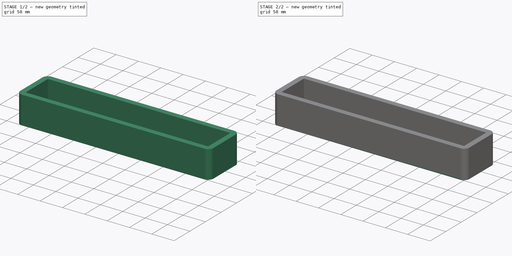
[diagram: build sequence overview — one tinted view per stage of 2, left to right]
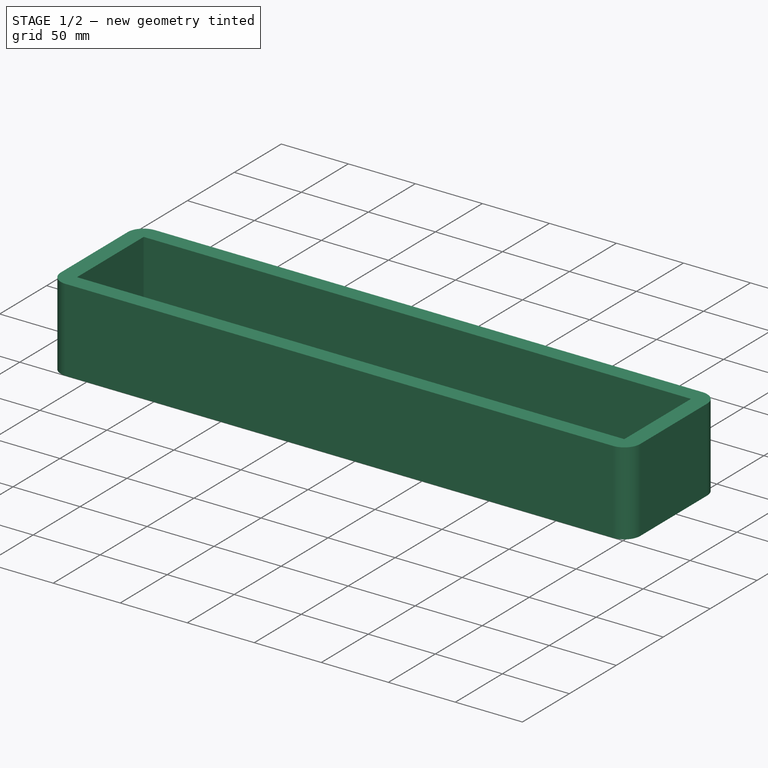
[diagram: stage 1 of 2 — iso view after this stage's code; geometry added in this stage tinted green]
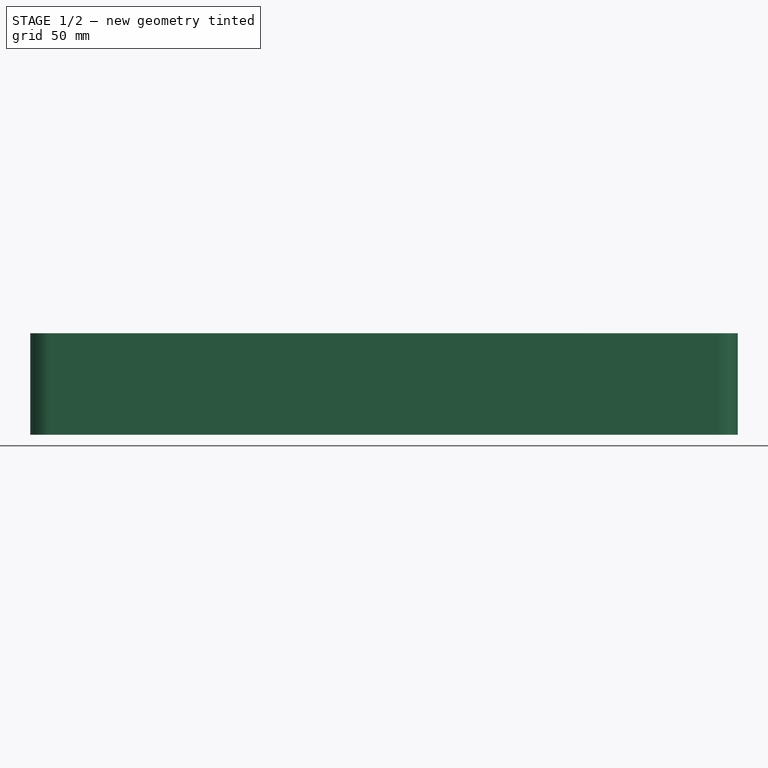
[diagram: stage 1 of 2 — front view after this stage's code; geometry added in this stage tinted green]
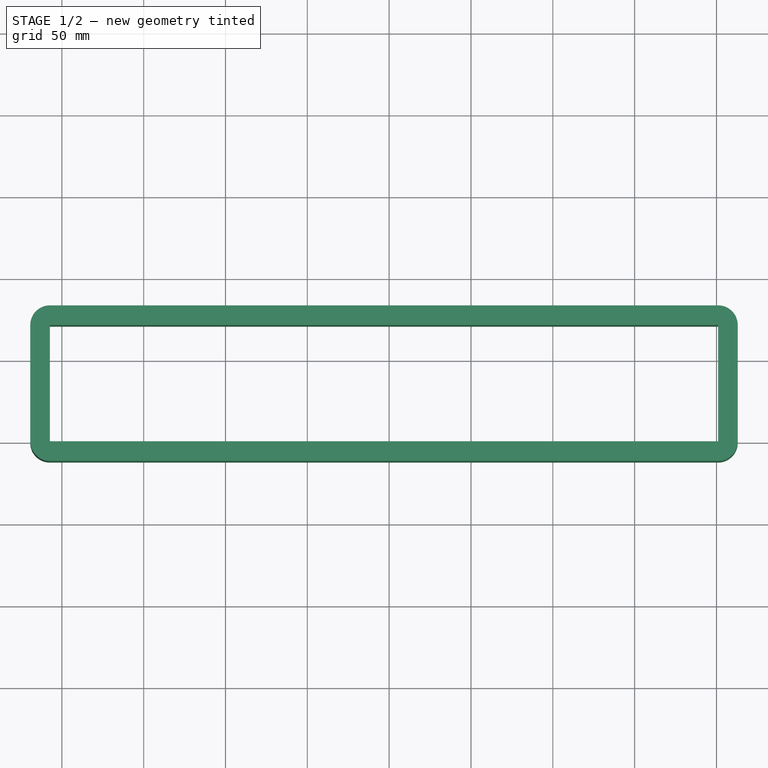
[diagram: stage 1 of 2 — top view after this stage's code; geometry added in this stage tinted green]
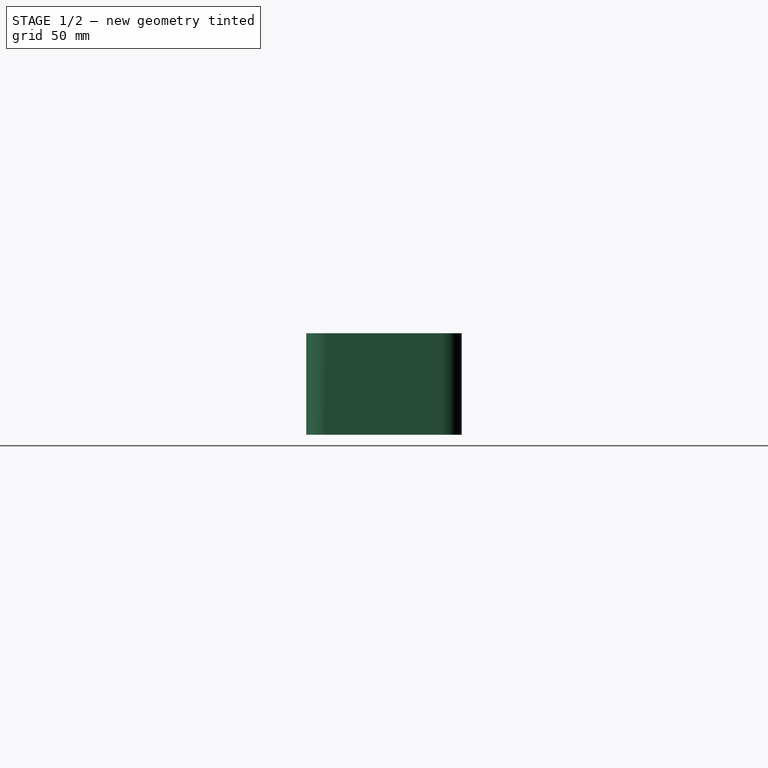
[diagram: stage 1 of 2 — right view after this stage's code; geometry added in this stage tinted green]
FCSTD DOCUMENT  (FreeCAD 0.21R33694 (Git))
Label: assembly
License: All rights reserved
LicenseURL: https://en.wikipedia.org/wiki/All_rights_reserved
objects: App::Part×5, App::VRMLObject×4, Part::FeaturePython×2, Sketcher::SketchObject×2, PartDesign::Pad×2, PartDesign::Body×1
note: 7 computed .brp shape members not serialized (recipe doc carries the construction recipe); baked Part::Feature solids carry a one-line shape summary decoded from their .brp

FEATURE [App::VRMLObject] ControlBoard
FEATURE [App::Part] Part001
  Group = -> [ControlBoard]
  Origin = -> Origin001
  Placement = pos=(0,0,7.5) rot=(0,0,1;0rad)
FEATURE [App::VRMLObject] DriverBoard
FEATURE [App::VRMLObject] FrontPanel
FEATURE [Part::FeaturePython] Array  # Draft array (typed FeaturePython)
  AlwaysSyncPlacement = false
  Angle = 360
  ArrayType = 0
  Axis = (0,0,1)
  Base = -> FrontPanel
  Center = (0,0,0)
  Count = 8
  ExpandArray = false
  Fuse = false
  IntervalAxis = (0,0,0)
  IntervalX = (-51.05,0,0)
  IntervalY = (0,0,0)
  IntervalZ = (0,0,100)
  NumberCircles = 3
  NumberPolar = 5
  NumberX = 8
  NumberY = 1
  NumberZ = 1
  PlacementList = 8 placements: arithmetic series from (0,0,0) step (-51.05,0,0) to (-357.35,0,0)
  RadialDistance = 50
  ScaleList = (8) [(1,1,1),(1,1,1),(1,1,1),(1,1,1),(1,1,1),(1,1,1),(1,1,1),(1,1,1)]
  Symmetry = 1
  TangentialDistance = 25
FEATURE [App::Part] Part003
  Group = -> [FrontPanel,Array]
  Origin = -> Origin003
  Placement = pos=(0,0,32.7) rot=(0,0,1;0rad)
FEATURE [Part::FeaturePython] Array001  # Draft array (typed FeaturePython)
  AlwaysSyncPlacement = false
  Angle = 360
  ArrayType = 0
  Axis = (0,0,1)
  Base = -> DriverBoard
  Center = (0,0,0)
  Count = 8
  ExpandArray = false
  Fuse = false
  IntervalAxis = (0,0,0)
  IntervalX = (-51.05,0,0)
  IntervalY = (0,100,0)
  IntervalZ = (0,0,100)
  NumberCircles = 3
  NumberPolar = 5
  NumberX = 8
  NumberY = 1
  NumberZ = 1
  PlacementList = 8 placements: arithmetic series from (0,0,0) step (-51.05,0,0) to (-357.35,0,0)
  RadialDistance = 50
  ScaleList = (8) [(1,1,1),(1,1,1),(1,1,1),(1,1,1),(1,1,1),(1,1,1),(1,1,1),(1,1,1)]
  Symmetry = 1
  TangentialDistance = 25
FEATURE [App::Part] Part002
  Group = -> [DriverBoard,Array001]
  Origin = -> Origin002
  Placement = pos=(0,0,7.5) rot=(0,0,1;0rad)
FEATURE [Sketcher::SketchObject] Sketch
  FullyConstrained = true
  MapMode = 5
  Support = -> [XY_Plane005]
  sketch-geometry (14):
    g0: LineSegment StartX=-357.29 StartY=71.05 StartZ=0 EndX=50.99 EndY=71.05 EndZ=0
    g1: LineSegment StartX=50.99 StartY=71.05 StartZ=0 EndX=50.99 EndY=0 EndZ=0
    g2: LineSegment StartX=50.99 StartY=0 StartZ=0 EndX=-357.29 EndY=0 EndZ=0
    g3: LineSegment StartX=-357.29 StartY=0 StartZ=0 EndX=-357.29 EndY=71.05 EndZ=0
    g4: ArcOfCircle CenterX=50.99 CenterY=71.05 CenterZ=0 NormalX=0 NormalY=0 NormalZ=1 AngleXU=0 Radius=12 StartAngle=5e-16 EndAngle=1.5708
    g5: LineSegment StartX=62.99 StartY=71.05 StartZ=0 EndX=62.99 EndY=0 EndZ=0
    g6: ArcOfCircle CenterX=50.99 CenterY=0 CenterZ=0 NormalX=0 NormalY=0 NormalZ=1 AngleXU=0 Radius=12 StartAngle=4.71239 EndAngle=6.28319
    g7: LineSegment StartX=50.99 StartY=-12 StartZ=0 EndX=-357.29 EndY=-12 EndZ=0
    g8: ArcOfCircle CenterX=-357.29 CenterY=0 CenterZ=0 NormalX=0 NormalY=0 NormalZ=1 AngleXU=0 Radius=12 StartAngle=3.14159 EndAngle=4.71239
    g9: LineSegment StartX=-369.29 StartY=-3.9e-15 StartZ=0 EndX=-369.29 EndY=71.05 EndZ=0
    g10: ArcOfCircle CenterX=-357.29 CenterY=71.05 CenterZ=0 NormalX=0 NormalY=0 NormalZ=1 AngleXU=0 Radius=12 StartAngle=1.5708 EndAngle=3.14159
    g11: LineSegment StartX=-357.29 StartY=83.05 StartZ=0 EndX=50.99 EndY=83.05 EndZ=0
    g12: GeomPoint X=62.99 Y=83.05 Z=0
    g13: GeomPoint X=-369.29 Y=-12 Z=0
  constraints (34):
    c: Coincident(g0,g1)
    c: Coincident(g1,g2)
    c: Coincident(g2,g3)
    c: Coincident(g3,g0)
    c: Horizontal(g0)
    c: Horizontal(g2)
    c: Vertical(g1)
    c: Vertical(g3)
    c: PointOnObject(g1,g-1)
    c: Distance(g1,g-2) = 50.99
    c: Distance(g0,g-2) = 357.29
    c: Distance(g1) = 71.05
    c: Tangent(g4,g5) = 1.5708
    c: Tangent(g5,g6) = 1.5708
    c: Tangent(g6,g7) = 1.5708
    c: Tangent(g7,g8) = 1.5708
    c: Tangent(g8,g9) = 1.5708
    c: Tangent(g9,g10) = 1.5708
    c: Tangent(g10,g11) = 1.5708
    c: Tangent(g11,g4) = 1.5708
    c: Horizontal(g7)
    c: Horizontal(g11)
    c: Vertical(g5)
    c: Vertical(g9)
    c: Equal(g4,g6)
    c: Equal(g6,g8)
    c: Equal(g8,g10)
    c: PointOnObject(g12,g5)
    c: PointOnObject(g12,g11)
    c: PointOnObject(g13,g7)
    c: PointOnObject(g13,g9)
    c: Distance(g4,g1) = 12
    c: Coincident(g4,g0)
    c: Coincident(g2,g8)
FEATURE [PartDesign::Pad] Pad
  Direction = (0,0,1)
  Length = 62
  Length2 = 10
  Profile = -> Sketch
  ReferenceAxis = -> Sketch [N_Axis]
  Type = 0
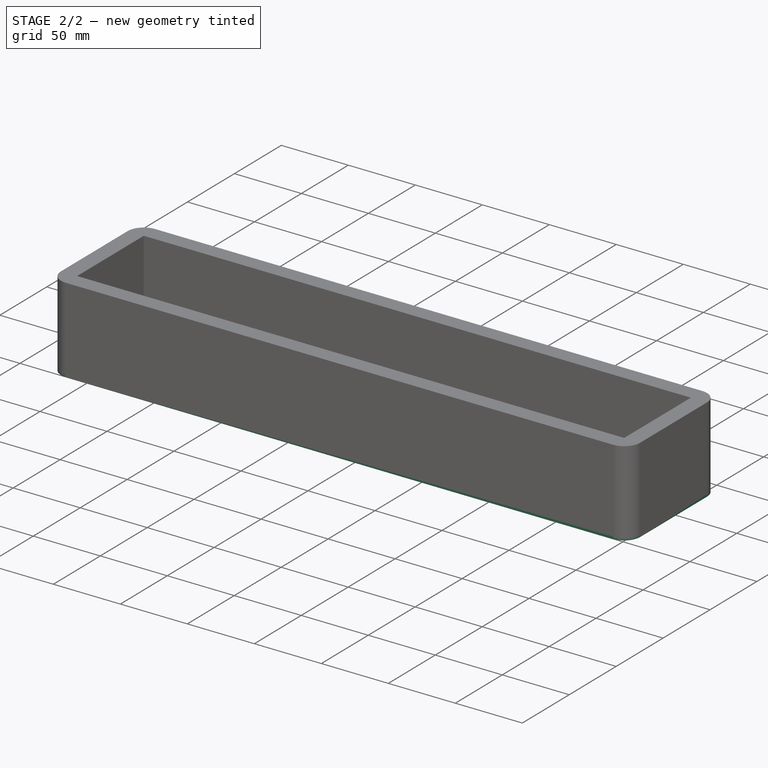
[diagram: stage 2 of 2 — iso view after this stage's code; geometry added in this stage tinted green]
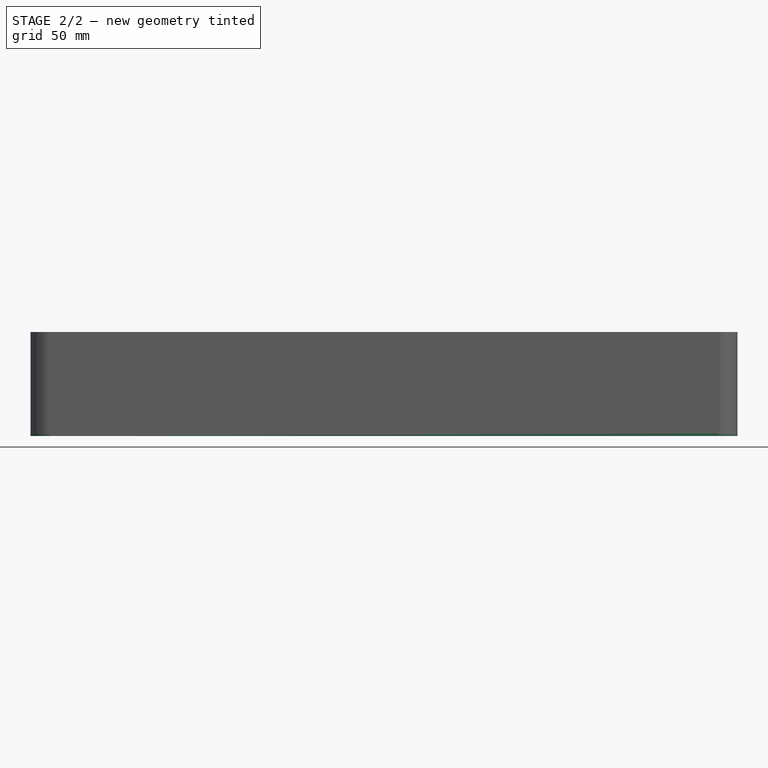
[diagram: stage 2 of 2 — front view after this stage's code; geometry added in this stage tinted green]
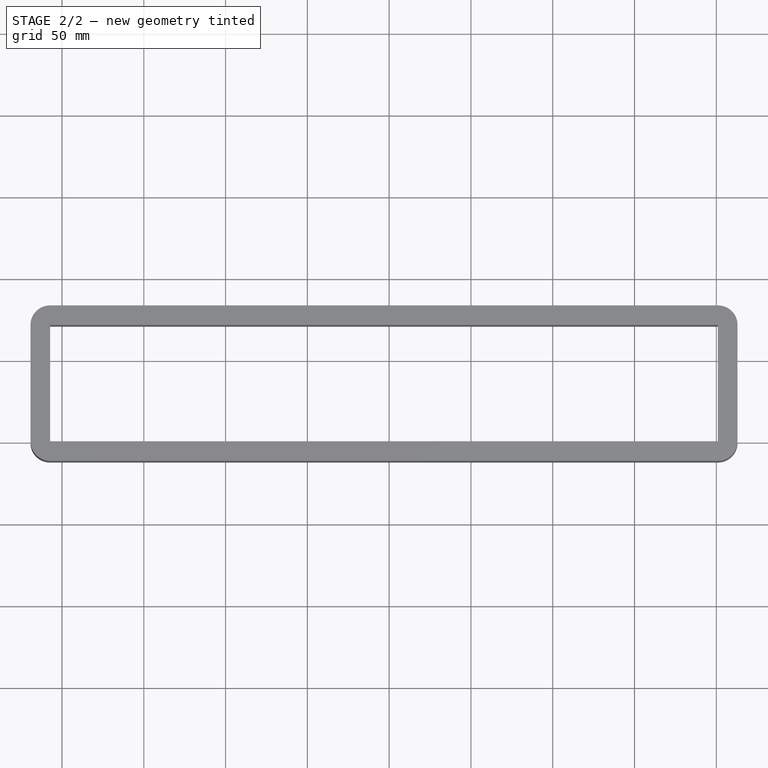
[diagram: stage 2 of 2 — top view after this stage's code; geometry added in this stage tinted green]
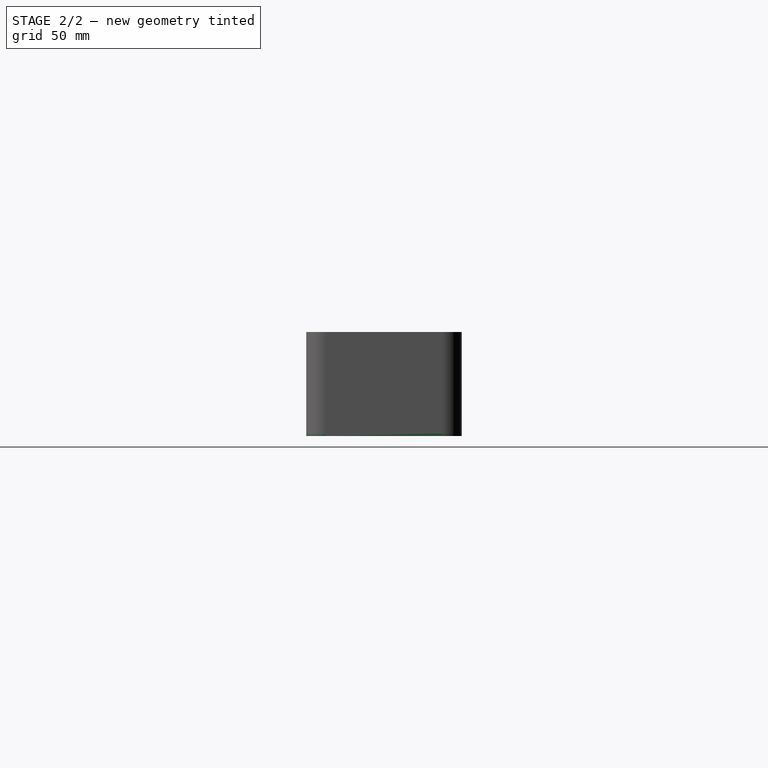
[diagram: stage 2 of 2 — right view after this stage's code; geometry added in this stage tinted green]
FEATURE [Sketcher::SketchObject] Sketch001
  ExternalGeometry = -> [Pad]
  FullyConstrained = true
  MapMode = 5
  Placement = pos=(0,0,0) rot=(1,0,0;3.14159rad)
  Support = -> [Pad]
  sketch-geometry (24):
    g0: LineSegment StartX=-369.29 StartY=-71.05 StartZ=0 EndX=-369.29 EndY=-83.05 EndZ=0
    g1: LineSegment StartX=-357.29 StartY=-83.05 StartZ=0 EndX=-369.29 EndY=-83.05 EndZ=0
    g2: LineSegment StartX=50.99 StartY=12 StartZ=0 EndX=62.99 EndY=12 EndZ=0
    g3: LineSegment StartX=62.99 StartY=0 StartZ=0 EndX=62.99 EndY=12 EndZ=0
    g4: ArcOfCircle CenterX=50.99 CenterY=-4.9e-14 CenterZ=0 NormalX=0 NormalY=0 NormalZ=1 AngleXU=0 Radius=12 StartAngle=3.56e-14 EndAngle=1.5708
    g5: LineSegment StartX=62.99 StartY=3.777e-13 StartZ=0 EndX=62.99 EndY=-71.05 EndZ=0
    g6: ArcOfCircle CenterX=50.99 CenterY=-71.05 CenterZ=0 NormalX=0 NormalY=0 NormalZ=1 AngleXU=0 Radius=12 StartAngle=4.71239 EndAngle=6.28319
    g7: LineSegment StartX=50.99 StartY=-83.05 StartZ=0 EndX=-357.29 EndY=-83.05 EndZ=0
    g8: ArcOfCircle CenterX=-357.29 CenterY=-71.05 CenterZ=0 NormalX=0 NormalY=0 NormalZ=1 AngleXU=0 Radius=12 StartAngle=3.14159 EndAngle=4.71239
    g9: LineSegment StartX=-369.29 StartY=-71.05 StartZ=0 EndX=-369.29 EndY=3.837e-13 EndZ=0
    g10: ArcOfCircle CenterX=-357.29 CenterY=-4.9e-14 CenterZ=0 NormalX=0 NormalY=0 NormalZ=1 AngleXU=0 Radius=12 StartAngle=1.5708 EndAngle=3.14159
    g11: LineSegment StartX=-357.29 StartY=12 StartZ=0 EndX=50.99 EndY=12 EndZ=0
    g12: GeomPoint X=62.99 Y=12 Z=0
    g13: GeomPoint X=-369.29 Y=-83.05 Z=0
    g14: ArcOfCircle CenterX=-359.29 CenterY=-73.05 CenterZ=0 NormalX=0 NormalY=0 NormalZ=1 AngleXU=0 Radius=5 StartAngle=3.14159 EndAngle=4.71239
    g15: LineSegment StartX=-364.29 StartY=-73.05 StartZ=0 EndX=-364.29 EndY=0 EndZ=0
    g16: ArcOfCircle CenterX=-359.29 CenterY=-4e-16 CenterZ=0 NormalX=0 NormalY=0 NormalZ=1 AngleXU=0 Radius=5 StartAngle=1.5708 EndAngle=3.14159
    g17: LineSegment StartX=-359.29 StartY=5 StartZ=0 EndX=52.99 EndY=5 EndZ=0
    g18: ArcOfCircle CenterX=52.99 CenterY=2e-16 CenterZ=0 NormalX=0 NormalY=0 NormalZ=1 AngleXU=0 Radius=5 StartAngle=1e-16 EndAngle=1.5708
    g19: LineSegment StartX=57.99 StartY=8e-16 StartZ=0 EndX=57.99 EndY=-73.05 EndZ=0
    g20: ArcOfCircle CenterX=52.99 CenterY=-73.05 CenterZ=0 NormalX=0 NormalY=0 NormalZ=1 AngleXU=0 Radius=5 StartAngle=4.71239 EndAngle=6.28319
    g21: LineSegment StartX=52.99 StartY=-78.05 StartZ=0 EndX=-359.29 EndY=-78.05 EndZ=0
    g22: GeomPoint X=-364.29 Y=-78.05 Z=0
    g23: GeomPoint X=57.99 Y=5 Z=0
  constraints (56):
    c: Coincident(g0,g-8)
    c: Vertical(g0)
    c: Coincident(g1,g-7)
    c: Coincident(g1,g0)
    c: Horizontal(g1)
    c: Coincident(g2,g-5)
    c: Horizontal(g2)
    c: Coincident(g3,g-4)
    c: Coincident(g3,g2)
    c: Vertical(g3)
    c: Tangent(g4,g5) = 1.5708
    c: Tangent(g5,g6) = 1.5708
    c: Tangent(g6,g7) = 1.5708
    c: Tangent(g7,g8) = 1.5708
    c: Tangent(g8,g9) = 1.5708
    c: Tangent(g9,g10) = 1.5708
    c: Tangent(g10,g11) = 1.5708
    c: Tangent(g11,g4) = 1.5708
    c: Horizontal(g7)
    c: Horizontal(g11)
    c: Vertical(g5)
    c: Vertical(g9)
    c: Equal(g4,g6)
    c: Equal(g6,g8)
    c: Equal(g8,g10)
    c: PointOnObject(g12,g5)
    c: PointOnObject(g12,g11)
    c: PointOnObject(g13,g7)
    c: PointOnObject(g13,g9)
    c: Coincident(g12,g2)
    c: Coincident(g13,g0)
    c: Equal(g8,g-7)
    c: Tangent(g14,g15) = 1.5708
    c: Tangent(g15,g16) = 1.5708
    c: Tangent(g16,g17) = 1.5708
    c: Tangent(g17,g18) = 1.5708
    c: Tangent(g18,g19) = 1.5708
    c: Tangent(g19,g20) = 1.5708
    c: Tangent(g20,g21) = 1.5708
    c: Tangent(g21,g14) = 1.5708
    c: Horizontal(g17)
    c: Horizontal(g21)
    c: Vertical(g15)
    c: Vertical(g19)
    c: Equal(g14,g16)
    c: Equal(g16,g18)
    c: Equal(g18,g20)
    c: PointOnObject(g22,g15)
    c: PointOnObject(g22,g21)
    c: PointOnObject(g23,g17)
    c: PointOnObject(g23,g19)
    c: Distance(g17,g-1) = 5
    c: Distance(g18,g5) = 5
    c: Distance(g14,g7) = 5
    c: Radius(g14) = 5
    c: Distance(g14,g9) = 5
FEATURE [PartDesign::Pad] Pad001
  BaseFeature = -> Pad
  Direction = (0,0,-1)
  Length = 1.6
  Length2 = 10
  Profile = -> Sketch001
  ReferenceAxis = -> Sketch001 [N_Axis]
  Type = 0
FEATURE [PartDesign::Body] Body
  Group = -> [Sketch,Pad,Sketch001,Pad001]
  Origin = -> Origin005
  Tip = -> Pad001
FEATURE [App::Part] Part004
  Group = -> [Body]
  Origin = -> Origin004
  Placement = pos=(0,0,-0.8) rot=(0,0,1;0rad)
FEATURE [App::VRMLObject] RearPanel001
FEATURE [App::Part] Part
  Group = -> [RearPanel001]
  Origin = -> Origin
  Placement = pos=(0,0,-1.6) rot=(0,0,1;0rad)
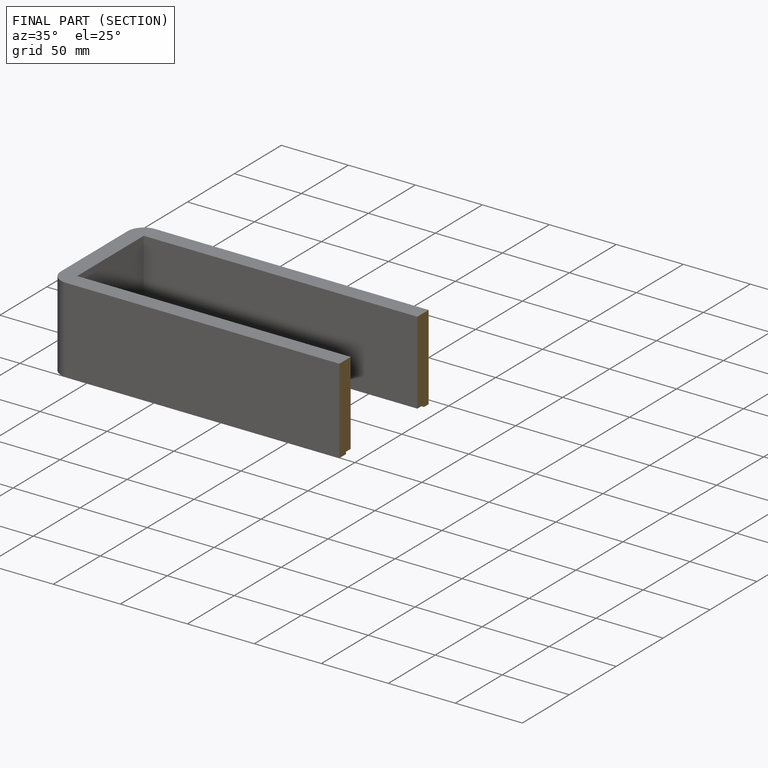
[diagram: finished part — half-section view (interior)]
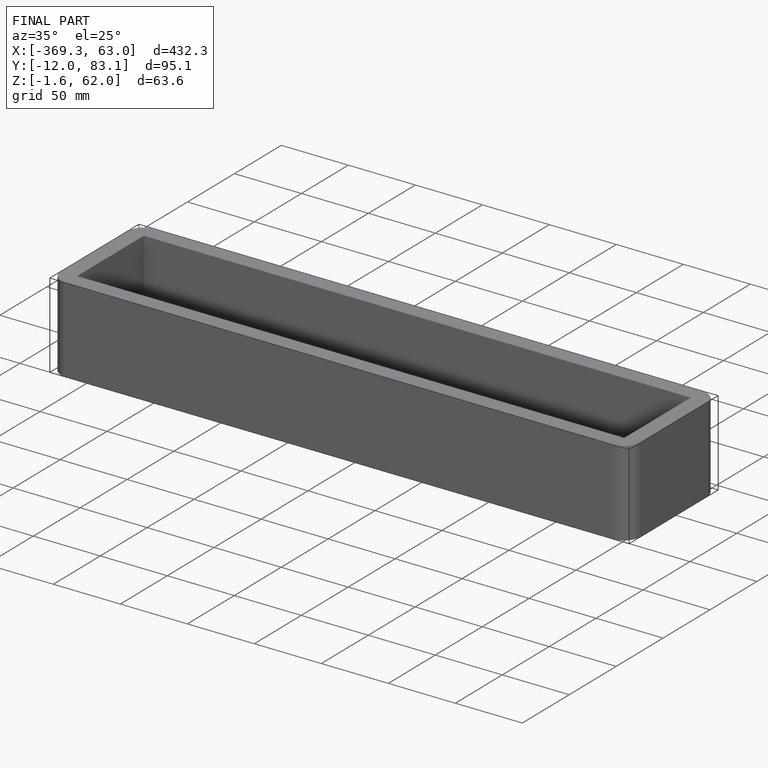
[diagram: finished part — iso view with bounding-box wireframe]
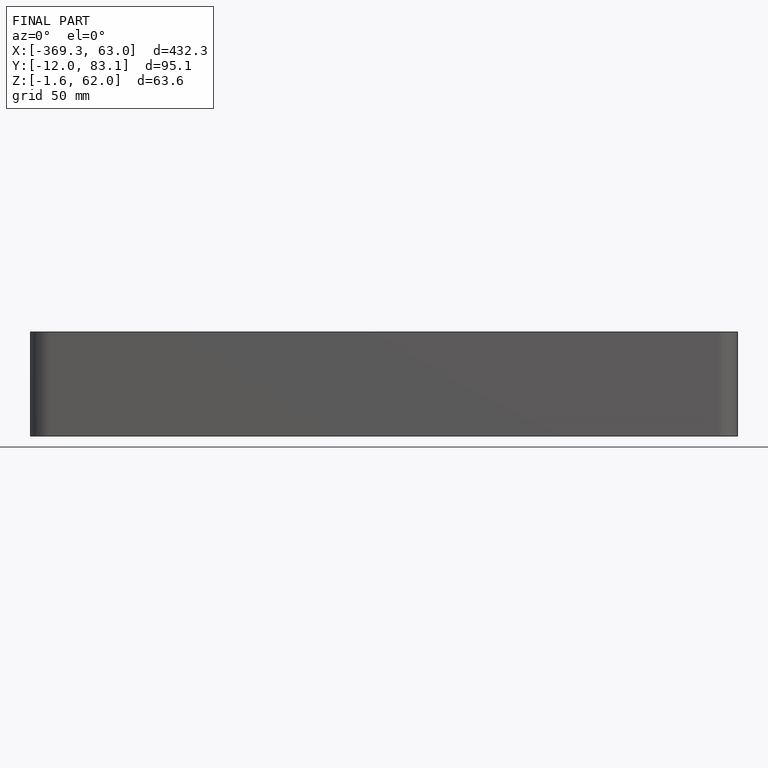
[diagram: finished part — front view with bounding-box wireframe]
